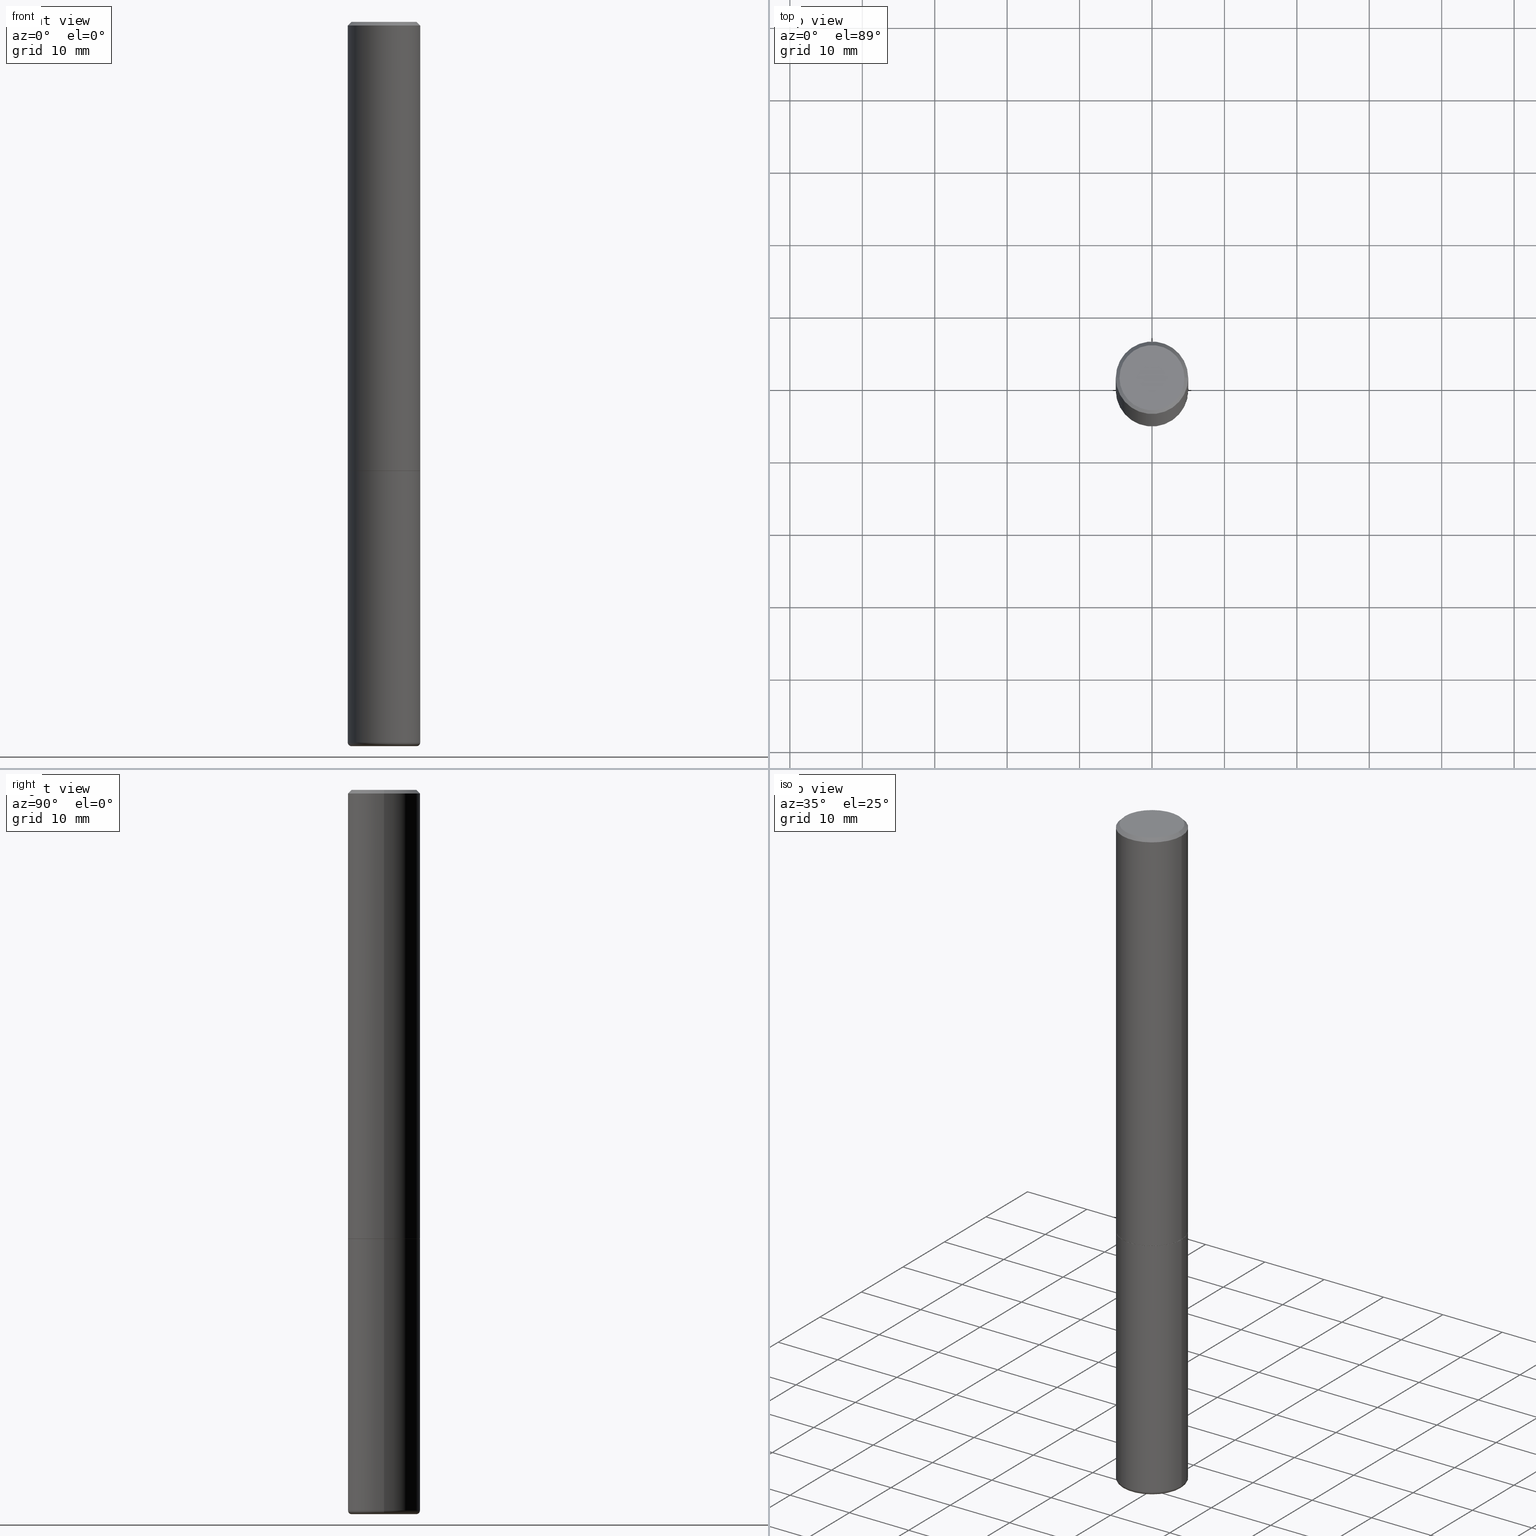
[diagram: canonical four-view strip — front | top / right | iso, engineering-drawing reading convention]
A machine part, canonical four-view strip (front | top / right | iso — engineering-drawing reading convention). The complete STEP part file that produces these views, byte-faithful:
ISO-10303-21;
HEADER;
FILE_DESCRIPTION (( 'STEP AP203' ),
    '1' );
FILE_NAME ('42678.STEP',
    '2024-03-04T01:03:24',
    ( '' ),
    ( '' ),
    'SwSTEP 2.0',
    'SolidWorks 2023',
    '' );
FILE_SCHEMA (( 'CONFIG_CONTROL_DESIGN' ));
ENDSEC;

DATA;
#1 = APPROVAL_ROLE ( '' ) ;
#2 = CARTESIAN_POINT ( 'NONE',  ( 0.1958499999999999963, -9.889970040407091715E-15, -2.440900000000000514 ) ) ;
#3 = AXIS2_PLACEMENT_3D ( 'NONE', #47, #51, #379 ) ;
#4 = CIRCLE ( 'NONE', #52, 0.1968500000000000250 ) ;
#5 = EDGE_CURVE ( 'NONE', #364, #43, #86, .T. ) ;
#6 = VERTEX_POINT ( 'NONE', #77 ) ;
#7 = DIRECTION ( 'NONE',  ( 1.000000000000000000, -6.982962677686265133E-15, 0.000000000000000000 ) ) ;
#8 = PRODUCT_RELATED_PRODUCT_CATEGORY ( 'detail', '', ( #269 ) ) ;
#9 = CARTESIAN_POINT ( 'NONE',  ( 9.627810689950881427E-29, -1.374596203102546184E-14, -3.936999999999999389 ) ) ;
#10 = ORIENTED_EDGE ( 'NONE', *, *, #107, .T. ) ;
#11 = DIRECTION ( 'NONE',  ( -2.445468806185136597E-29, 3.491481338843145583E-15, 1.000000000000000000 ) ) ;
#12 = EDGE_CURVE ( 'NONE', #364, #403, #382, .T. ) ;
#13 = VECTOR ( 'NONE', #414, 39.37007874015748143 ) ;
#14 = VERTEX_POINT ( 'NONE', #83 ) ;
#15 = EDGE_LOOP ( 'NONE', ( #164, #371 ) ) ;
#16 = EDGE_CURVE ( 'NONE', #394, #231, #138, .T. ) ;
#17 = CARTESIAN_POINT ( 'NONE',  ( -0.1968500000000001360, 1.398703375343758182E-15, -9.682923725166790684E-30 ) ) ;
#18 = PLANE ( 'NONE',  #53 ) ;
#19 = CIRCLE ( 'NONE', #356, 0.01969999999999962059 ) ;
#20 = DIRECTION ( 'NONE',  ( -2.445468806185136597E-29, 3.491481338843145583E-15, 1.000000000000000000 ) ) ;
#21 = LINE ( 'NONE', #369, #342 ) ;
#22 = DIRECTION ( 'NONE',  ( 1.000000000000000000, -6.982962677686266711E-15, 4.876176775795935793E-29 ) ) ;
#23 = CC_DESIGN_PERSON_AND_ORGANIZATION_ASSIGNMENT ( #273, #280, ( #269 ) ) ;
#24 = EDGE_CURVE ( 'NONE', #106, #316, #143, .T. ) ;
#25 = DIRECTION ( 'NONE',  ( -2.445468806185136597E-29, 3.491481338843145583E-15, 1.000000000000000000 ) ) ;
#26 = CLOSED_SHELL ( 'NONE', ( #195, #256, #381, #341, #295, #119 ) ) ;
#27 = EDGE_CURVE ( 'NONE', #394, #272, #345, .T. ) ;
#28 = CARTESIAN_POINT ( 'NONE',  ( 0.1968500000000000527, -1.420318657638189516E-15, -0.02000000000000004205 ) ) ;
#29 = ORIENTED_EDGE ( 'NONE', *, *, #262, .T. ) ;
#30 = APPROVAL_ROLE ( '' ) ;
#31 = CARTESIAN_POINT ( 'NONE',  ( 0.000000000000000000, 0.000000000000000000, 0.000000000000000000 ) ) ;
#32 = CIRCLE ( 'NONE', #405, 0.1968500000000000250 ) ;
#33 = DIRECTION ( 'NONE',  ( -2.445468806185136597E-29, 3.491481338843145583E-15, 1.000000000000000000 ) ) ;
#34 = ADVANCED_FACE ( 'NONE', ( #213 ), #417, .T. ) ;
#35 = CIRCLE ( 'NONE', #68, 0.1968500000000000527 ) ;
#36 = APPROVAL_PERSON_ORGANIZATION ( #249, #322, #1 ) ;
#37 = CARTESIAN_POINT ( 'NONE',  ( 0.1968500000000002470, -9.893461521745933144E-15, -2.439900000000000180 ) ) ;
#38 = ORIENTED_EDGE ( 'NONE', *, *, #49, .F. ) ;
#39 = CYLINDRICAL_SURFACE ( 'NONE', #252, 0.1968499999999999694 ) ;
#40 = DIRECTION ( 'NONE',  ( 2.438088387897960049E-29, -3.491481338843145188E-15, -1.000000000000000000 ) ) ;
#41 = CC_DESIGN_SECURITY_CLASSIFICATION ( #413, ( #383 ) ) ;
#42 = DATE_AND_TIME ( #298, #351 ) ;
#43 = VERTEX_POINT ( 'NONE', #48 ) ;
#44 = ORIENTED_EDGE ( 'NONE', *, *, #262, .F. ) ;
#45 = DIRECTION ( 'NONE',  ( -2.445468806185136597E-29, 3.491481338843145583E-15, 1.000000000000000000 ) ) ;
#46 = AXIS2_PLACEMENT_3D ( 'NONE', #84, #20, #50 ) ;
#47 = CARTESIAN_POINT ( 'NONE',  ( 5.969144809017301280E-29, -8.522356799982236121E-15, -2.440900000000000514 ) ) ;
#48 = CARTESIAN_POINT ( 'NONE',  ( -0.1968500000000002470, -2.895644097366365685E-15, -2.439900000000000180 ) ) ;
#49 = EDGE_CURVE ( 'NONE', #272, #96, #32, .T. ) ;
#50 = DIRECTION ( 'NONE',  ( 1.000000000000000000, -6.982962677686269866E-15, 0.000000000000000000 ) ) ;
#51 = DIRECTION ( 'NONE',  ( -2.445468806185136597E-29, 3.491481338843145583E-15, 1.000000000000000000 ) ) ;
#52 = AXIS2_PLACEMENT_3D ( 'NONE', #396, #98, #352 ) ;
#53 = AXIS2_PLACEMENT_3D ( 'NONE', #165, #40, #162 ) ;
#54 = FACE_OUTER_BOUND ( 'NONE', #227, .T. ) ;
#55 = CIRCLE ( 'NONE', #180, 0.1968500000000000527 ) ;
#56 = CARTESIAN_POINT ( 'NONE',  ( 0.000000000000000000, 0.000000000000000000, 0.000000000000000000 ) ) ;
#57 = AXIS2_PLACEMENT_3D ( 'NONE', #310, #118, #314 ) ;
#58 = DATE_AND_TIME ( #166, #287 ) ;
#59 = EDGE_CURVE ( 'NONE', #140, #132, #35, .T. ) ;
#60 = ORIENTED_EDGE ( 'NONE', *, *, #116, .T. ) ;
#61 = CYLINDRICAL_SURFACE ( 'NONE', #92, 0.1968500000000001360 ) ;
#62 = EDGE_LOOP ( 'NONE', ( #398, #230, #141, #182 ) ) ;
#63 = DIRECTION ( 'NONE',  ( 1.000000000000000000, -6.982962677686271444E-15, 4.883557194083114583E-29 ) ) ;
#64 = DIRECTION ( 'NONE',  ( -2.445468806185136597E-29, 3.491481338843145583E-15, 1.000000000000000000 ) ) ;
#65 = FACE_OUTER_BOUND ( 'NONE', #299, .T. ) ;
#66 = ORIENTED_EDGE ( 'NONE', *, *, #155, .F. ) ;
#67 = DIRECTION ( 'NONE',  ( 2.445468806185136597E-29, -3.491481338843145583E-15, -1.000000000000000000 ) ) ;
#68 = AXIS2_PLACEMENT_3D ( 'NONE', #340, #411, #259 ) ;
#69 = AXIS2_PLACEMENT_3D ( 'NONE', #233, #90, #220 ) ;
#70 = EDGE_CURVE ( 'NONE', #43, #279, #160, .T. ) ;
#71 = ORIENTED_EDGE ( 'NONE', *, *, #329, .T. ) ;
#72 = PERSON_AND_ORGANIZATION_ROLE ( 'creator' ) ;
#73 = CARTESIAN_POINT ( 'NONE',  ( 9.579634954469036932E-29, -1.367717984865025539E-14, -3.917300000000000448 ) ) ;
#74 = PLANE ( 'NONE',  #319 ) ;
#75 = ORIENTED_EDGE ( 'NONE', *, *, #70, .T. ) ;
#76 = CC_DESIGN_DATE_AND_TIME_ASSIGNMENT ( #58, #154, ( #413 ) ) ;
#77 = CARTESIAN_POINT ( 'NONE',  ( -0.1771500000000000019, -1.238285602396647324E-14, -3.936999999999999389 ) ) ;
#78 = CIRCLE ( 'NONE', #223, 0.1771500000000000019 ) ;
#79 = CARTESIAN_POINT ( 'NONE',  ( 0.1958499999999999963, -9.889970040407091715E-15, -2.440900000000000514 ) ) ;
#80 = ORIENTED_EDGE ( 'NONE', *, *, #281, .F. ) ;
#81 = LINE ( 'NONE', #225, #274 ) ;
#82 = DIRECTION ( 'NONE',  ( 1.000000000000000000, -6.982962677686272233E-15, 0.000000000000000000 ) ) ;
#83 = CARTESIAN_POINT ( 'NONE',  ( 0.1771500000000000019, -1.498299386937758423E-14, -3.936999999999999389 ) ) ;
#84 = CARTESIAN_POINT ( 'NONE',  ( 9.579634954469036932E-29, -1.367717984865025539E-14, -3.917300000000000448 ) ) ;
#85 = DIRECTION ( 'NONE',  ( 1.000000000000000000, -6.982962677686268288E-15, 0.000000000000000000 ) ) ;
#86 = LINE ( 'NONE', #347, #211 ) ;
#87 =( NAMED_UNIT ( * ) SI_UNIT ( $, .STERADIAN. ) SOLID_ANGLE_UNIT ( ) );
#88 = EDGE_CURVE ( 'NONE', #14, #6, #78, .T. ) ;
#89 = PLANE ( 'NONE',  #412 ) ;
#90 = DIRECTION ( 'NONE',  ( -2.445468806185136597E-29, 3.491481338843145583E-15, 1.000000000000000000 ) ) ;
#91 = COORDINATED_UNIVERSAL_TIME_OFFSET ( 5, 0, .BEHIND. ) ;
#92 = AXIS2_PLACEMENT_3D ( 'NONE', #365, #64, #22 ) ;
#93 = ADVANCED_FACE ( 'NONE', ( #311 ), #74, .F. ) ;
#94 = DIRECTION ( 'NONE',  ( -1.000000000000000000, 7.105427357600965571E-15, 0.000000000000000000 ) ) ;
#95 = APPROVAL_DATE_TIME ( #392, #322 ) ;
#96 = VERTEX_POINT ( 'NONE', #339 ) ;
#97 = APPLICATION_PROTOCOL_DEFINITION ( 'international standard', 'config_control_design', 1994, #400 ) ;
#98 = DIRECTION ( 'NONE',  ( -2.445468806185136597E-29, 3.491481338843145583E-15, 1.000000000000000000 ) ) ;
#99 = DESIGN_CONTEXT ( 'detailed design', #385, 'design' ) ;
#100 = ORIENTED_EDGE ( 'NONE', *, *, #107, .F. ) ;
#101 = PERSON_AND_ORGANIZATION ( #219, #224 ) ;
#102 = ORIENTED_EDGE ( 'NONE', *, *, #184, .F. ) ;
#103 = DIRECTION ( 'NONE',  ( 0.000000000000000000, 0.000000000000000000, 1.000000000000000000 ) ) ;
#104 = LINE ( 'NONE', #17, #139 ) ;
#105 = EDGE_CURVE ( 'NONE', #279, #132, #410, .T. ) ;
#106 = VERTEX_POINT ( 'NONE', #131 ) ;
#107 = EDGE_CURVE ( 'NONE', #231, #96, #185, .T. ) ;
#108 = ORIENTED_EDGE ( 'NONE', *, *, #391, .F. ) ;
#109 = CARTESIAN_POINT ( 'NONE',  ( 9.627810689950881427E-29, -1.374596203102546184E-14, -3.936999999999999389 ) ) ;
#110 = CARTESIAN_POINT ( 'NONE',  ( 9.579634954469036932E-29, -1.367717984865025539E-14, -3.917300000000000448 ) ) ;
#111 = CARTESIAN_POINT ( 'NONE',  ( 4.890937612370283668E-31, -6.982962677686305168E-17, -0.02000000000000004205 ) ) ;
#112 = AXIS2_PLACEMENT_3D ( 'NONE', #173, #45, #201 ) ;
#113 = AXIS2_PLACEMENT_3D ( 'NONE', #109, #362, #318 ) ;
#114 = ORIENTED_EDGE ( 'NONE', *, *, #70, .F. ) ;
#115 = CARTESIAN_POINT ( 'NONE',  ( -0.1958499999999999963, -7.125460397647855362E-15, -2.440900000000000514 ) ) ;
#116 = EDGE_CURVE ( 'NONE', #132, #140, #55, .T. ) ;
#117 = DIRECTION ( 'NONE',  ( 1.000000000000000000, -6.982962677686266711E-15, 4.870572768024644616E-29 ) ) ;
#118 = DIRECTION ( 'NONE',  ( -2.445468806185136597E-29, 3.491481338843145583E-15, 1.000000000000000000 ) ) ;
#119 = ADVANCED_FACE ( 'NONE', ( #338 ), #409, .T. ) ;
#120 = CC_DESIGN_APPROVAL ( #322, ( #401 ) ) ;
#121 = COORDINATED_UNIVERSAL_TIME_OFFSET ( 5, 0, .BEHIND. ) ;
#122 = FACE_OUTER_BOUND ( 'NONE', #406, .T. ) ;
#123 = EDGE_CURVE ( 'NONE', #106, #132, #81, .T. ) ;
#124 = DIRECTION ( 'NONE',  ( -6.982962677686266711E-15, -1.000000000000000000, 3.491481338843145583E-15 ) ) ;
#125 = AXIS2_PLACEMENT_3D ( 'NONE', #387, #291, #94 ) ;
#126 = CONICAL_SURFACE ( 'NONE', #320, 0.1958499999999999963, 0.7853981633973970977 ) ;
#127 = PERSON_AND_ORGANIZATION ( #219, #224 ) ;
#128 = PERSON_AND_ORGANIZATION_ROLE ( 'creator' ) ;
#129 = ORIENTED_EDGE ( 'NONE', *, *, #116, .F. ) ;
#130 = DIRECTION ( 'NONE',  ( 1.000000000000000000, -6.982962677686266711E-15, 4.876176775795935793E-29 ) ) ;
#131 = CARTESIAN_POINT ( 'NONE',  ( 0.1768499999999998129, -1.316798864272041352E-15, 2.091571120149290674E-16 ) ) ;
#132 = VERTEX_POINT ( 'NONE', #28 ) ;
#133 = ORIENTED_EDGE ( 'NONE', *, *, #221, .T. ) ;
#134 = ORIENTED_EDGE ( 'NONE', *, *, #12, .F. ) ;
#135 = CALENDAR_DATE ( 2024, 3, 3 ) ;
#136 = ORIENTED_EDGE ( 'NONE', *, *, #59, .F. ) ;
#137 = ADVANCED_FACE ( 'NONE', ( #386 ), #89, .F. ) ;
#138 = CIRCLE ( 'NONE', #46, 0.1968499999999999694 ) ;
#139 = VECTOR ( 'NONE', #344, 39.37007874015748143 ) ;
#140 = VERTEX_POINT ( 'NONE', #244 ) ;
#141 = ORIENTED_EDGE ( 'NONE', *, *, #312, .T. ) ;
#142 = DIRECTION ( 'NONE',  ( 2.438088387897960049E-29, -3.491481338843145188E-15, -1.000000000000000000 ) ) ;
#143 = CIRCLE ( 'NONE', #232, 0.1768499999999998129 ) ;
#144 = AXIS2_PLACEMENT_3D ( 'NONE', #56, #103, #157 ) ;
#145 = DIRECTION ( 'NONE',  ( -2.445468806185136597E-29, 3.491481338843145583E-15, 1.000000000000000000 ) ) ;
#146 = DIRECTION ( 'NONE',  ( 2.445468806185136597E-29, -3.491481338843145583E-15, -1.000000000000000000 ) ) ;
#147 = EDGE_LOOP ( 'NONE', ( #359, #242 ) ) ;
#148 = ADVANCED_FACE ( 'NONE', ( #361 ), #61, .T. ) ;
#149 = DIRECTION ( 'NONE',  ( -2.445468806185136597E-29, 3.491481338843145583E-15, 1.000000000000000000 ) ) ;
#150 = AXIS2_PLACEMENT_3D ( 'NONE', #111, #146, #415 ) ;
#151 = PERSON_AND_ORGANIZATION ( #219, #224 ) ;
#152 = MECHANICAL_CONTEXT ( 'NONE', #400, 'mechanical' ) ;
#153 = CONICAL_SURFACE ( 'NONE', #150, 0.1968500000000000527, 0.7853981633974477239 ) ;
#154 = DATE_TIME_ROLE ( 'classification_date' ) ;
#155 = EDGE_CURVE ( 'NONE', #403, #364, #282, .T. ) ;
#156 = EDGE_LOOP ( 'NONE', ( #366, #333, #108, #245 ) ) ;
#157 = DIRECTION ( 'NONE',  ( 1.000000000000000000, 0.000000000000000000, 0.000000000000000000 ) ) ;
#158 = DATE_AND_TIME ( #135, #325 ) ;
#159 = ORIENTED_EDGE ( 'NONE', *, *, #258, .F. ) ;
#160 = CIRCLE ( 'NONE', #286, 0.1968500000000002470 ) ;
#161 = LOCAL_TIME ( 20, 3, 24.00000000000000000, #121 ) ;
#162 = DIRECTION ( 'NONE',  ( -1.000000000000000000, 6.982962677686265922E-15, -4.876176775795935793E-29 ) ) ;
#163 = DIRECTION ( 'NONE',  ( -2.445468806185136597E-29, 3.491481338843145583E-15, 1.000000000000000000 ) ) ;
#164 = ORIENTED_EDGE ( 'NONE', *, *, #337, .T. ) ;
#165 = CARTESIAN_POINT ( 'NONE',  ( 5.969144809017300159E-29, -8.522356799982234543E-15, -2.440900000000000070 ) ) ;
#166 = CALENDAR_DATE ( 2024, 3, 3 ) ;
#167 = ORIENTED_EDGE ( 'NONE', *, *, #184, .T. ) ;
#168 = CARTESIAN_POINT ( 'NONE',  ( 5.969144809017300159E-29, -8.522356799982234543E-15, -2.440900000000000070 ) ) ;
#169 = DIRECTION ( 'NONE',  ( -1.000000000000000000, 6.982962677686265922E-15, -4.876176775795935793E-29 ) ) ;
#170 = VECTOR ( 'NONE', #313, 39.37007874015748143 ) ;
#171 = CC_DESIGN_APPROVAL ( #210, ( #383 ) ) ;
#172 = APPROVAL_DATE_TIME ( #158, #363 ) ;
#173 = CARTESIAN_POINT ( 'NONE',  ( 0.000000000000000000, 0.000000000000000000, 0.000000000000000000 ) ) ;
#174 = DIRECTION ( 'NONE',  ( -0.7071067811865471286, 2.468850131082252722E-15, -0.7071067811865479058 ) ) ;
#175 = UNCERTAINTY_MEASURE_WITH_UNIT (LENGTH_MEASURE( 1.000000000000000082E-05 ), #321, 'distance_accuracy_value', 'NONE');
#176 = CARTESIAN_POINT ( 'NONE',  ( 5.969144809017301280E-29, -8.522356799982236121E-15, -2.440900000000000514 ) ) ;
#177 = DIRECTION ( 'NONE',  ( -2.445468806185136597E-29, 3.491481338843145583E-15, 1.000000000000000000 ) ) ;
#178 = EDGE_CURVE ( 'NONE', #6, #394, #390, .T. ) ;
#179 = CARTESIAN_POINT ( 'NONE',  ( -5.114871930242576863E-45, 7.302681534864191472E-31, 2.091571120149201434E-16 ) ) ;
#180 = AXIS2_PLACEMENT_3D ( 'NONE', #360, #11, #209 ) ;
#181 = AXIS2_PLACEMENT_3D ( 'NONE', #216, #380, #85 ) ;
#182 = ORIENTED_EDGE ( 'NONE', *, *, #59, .T. ) ;
#183 = APPROVAL_STATUS ( 'not_yet_approved' ) ;
#184 = EDGE_CURVE ( 'NONE', #96, #272, #4, .T. ) ;
#185 = LINE ( 'NONE', #334, #240 ) ;
#186 = CC_DESIGN_APPROVAL ( #363, ( #413 ) ) ;
#187 = LENGTH_MEASURE_WITH_UNIT ( LENGTH_MEASURE( 0.02539999999999999897 ), #288 );
#188 = CARTESIAN_POINT ( 'NONE',  ( 0.1771500000000000019, -1.491421168700237936E-14, -3.917300000000000448 ) ) ;
#189 = CARTESIAN_POINT ( 'NONE',  ( 5.966699340211115678E-29, -8.518865318643391536E-15, -2.439900000000000180 ) ) ;
#190 = CARTESIAN_POINT ( 'NONE',  ( 0.1968499999999998029, -1.505177605175279542E-14, -3.917300000000000448 ) ) ;
#191 = ORIENTED_EDGE ( 'NONE', *, *, #105, .F. ) ;
#192 = COORDINATED_UNIVERSAL_TIME_OFFSET ( 5, 0, .BEHIND. ) ;
#193 = PRODUCT_DEFINITION_SHAPE ( 'NONE', 'NONE',  #401 ) ;
#194 = ORIENTED_EDGE ( 'NONE', *, *, #123, .T. ) ;
#195 = ADVANCED_FACE ( 'NONE', ( #122 ), #228, .T. ) ;
#196 = EDGE_LOOP ( 'NONE', ( #167, #208 ) ) ;
#197 = CC_DESIGN_PERSON_AND_ORGANIZATION_ASSIGNMENT ( #198, #393, ( #383 ) ) ;
#198 = PERSON_AND_ORGANIZATION ( #219, #224 ) ;
#199 = ORIENTED_EDGE ( 'NONE', *, *, #258, .T. ) ;
#200 = EDGE_LOOP ( 'NONE', ( #402, #194, #60, #309 ) ) ;
#201 = DIRECTION ( 'NONE',  ( 1.000000000000000000, -6.982962677686266711E-15, 4.876176775795935793E-29 ) ) ;
#202 = CARTESIAN_POINT ( 'NONE',  ( 0.1968500000000001360, -1.374596203102542594E-15, 9.598753983154306463E-30 ) ) ;
#203 = DIRECTION ( 'NONE',  ( 1.000000000000000000, -6.982962677686266711E-15, 4.870572768024644616E-29 ) ) ;
#204 = DIRECTION ( 'NONE',  ( -0.7071067811865112684, 7.493145998870223209E-15, 0.7071067811865837660 ) ) ;
#205 = APPLICATION_PROTOCOL_DEFINITION ( 'international standard', 'config_control_design', 1994, #385 ) ;
#206 = EDGE_LOOP ( 'NONE', ( #268, #229, #29, #114 ) ) ;
#207 = CARTESIAN_POINT ( 'NONE',  ( -0.1968499999999998029, -1.227847647330649996E-14, -3.917300000000000448 ) ) ;
#208 = ORIENTED_EDGE ( 'NONE', *, *, #49, .T. ) ;
#209 = DIRECTION ( 'NONE',  ( 1.000000000000000000, -6.982962677686266711E-15, 0.000000000000000000 ) ) ;
#210 = APPROVAL ( #289, 'UNSPECIFIED' ) ;
#211 = VECTOR ( 'NONE', #204, 39.37007874015748143 ) ;
#212 = AXIS2_PLACEMENT_3D ( 'NONE', #179, #33, #203 ) ;
#213 = FACE_OUTER_BOUND ( 'NONE', #304, .T. ) ;
#214 = DIRECTION ( 'NONE',  ( -2.445468806185136877E-29, 3.491481338843145188E-15, 1.000000000000000000 ) ) ;
#215 = FACE_OUTER_BOUND ( 'NONE', #200, .T. ) ;
#216 = CARTESIAN_POINT ( 'NONE',  ( 5.969144809017301280E-29, -8.522356799982236121E-15, -2.440900000000000514 ) ) ;
#217 = CARTESIAN_POINT ( 'NONE',  ( 1.234936949548814815E-15, 0.1768499999999998129, -5.128899187669496159E-16 ) ) ;
#218 = CC_DESIGN_PERSON_AND_ORGANIZATION_ASSIGNMENT ( #303, #226, ( #413 ) ) ;
#219 = PERSON ( 'UNSPECIFIED', 'UNSPECIFIED', 'UNSPECIFIED', ('UNSPECIFIED'), ('UNSPECIFIED'), ('UNSPECIFIED') ) ;
#220 = DIRECTION ( 'NONE',  ( 1.000000000000000000, -6.982962677686265133E-15, 0.000000000000000000 ) ) ;
#221 = EDGE_CURVE ( 'NONE', #14, #231, #19, .T. ) ;
#222 = DATE_AND_TIME ( #247, #308 ) ;
#223 = AXIS2_PLACEMENT_3D ( 'NONE', #9, #163, #82 ) ;
#224 = ORGANIZATION ( 'UNSPECIFIED', 'UNSPECIFIED', '' ) ;
#225 = CARTESIAN_POINT ( 'NONE',  ( 0.1968500000000000527, -1.420318657638189516E-15, -0.02000000000000004205 ) ) ;
#226 = PERSON_AND_ORGANIZATION_ROLE ( 'classification_officer' ) ;
#227 = EDGE_LOOP ( 'NONE', ( #236, #71, #133, #336 ) ) ;
#228 = CYLINDRICAL_SURFACE ( 'NONE', #251, 0.1968499999999999694 ) ;
#229 = ORIENTED_EDGE ( 'NONE', *, *, #12, .T. ) ;
#230 = ORIENTED_EDGE ( 'NONE', *, *, #337, .F. ) ;
#231 = VERTEX_POINT ( 'NONE', #190 ) ;
#232 = AXIS2_PLACEMENT_3D ( 'NONE', #284, #177, #117 ) ;
#233 = CARTESIAN_POINT ( 'NONE',  ( 5.966699340211115678E-29, -8.518865318643391536E-15, -2.439900000000000180 ) ) ;
#234 = DIRECTION ( 'NONE',  ( 1.000000000000000000, -6.982962677686268288E-15, 0.000000000000000000 ) ) ;
#235 = DIRECTION ( 'NONE',  ( -1.000000000000000000, 6.982962677686265922E-15, -4.876176775795935793E-29 ) ) ;
#236 = ORIENTED_EDGE ( 'NONE', *, *, #178, .F. ) ;
#237 = CC_DESIGN_DATE_AND_TIME_ASSIGNMENT ( #222, #290, ( #401 ) ) ;
#238 = DIRECTION ( 'NONE',  ( 0.7071067811865471286, -7.319954787623254468E-15, -0.7071067811865479058 ) ) ;
#239 = ORIENTED_EDGE ( 'NONE', *, *, #105, .T. ) ;
#240 = VECTOR ( 'NONE', #214, 39.37007874015748143 ) ;
#241 = CIRCLE ( 'NONE', #69, 0.1968500000000002470 ) ;
#242 = ORIENTED_EDGE ( 'NONE', *, *, #329, .F. ) ;
#243 = CC_DESIGN_PERSON_AND_ORGANIZATION_ASSIGNMENT ( #348, #72, ( #401 ) ) ;
#244 = CARTESIAN_POINT ( 'NONE',  ( -0.1968500000000000527, 1.304766576325678902E-15, -0.02000000000000004205 ) ) ;
#245 = ORIENTED_EDGE ( 'NONE', *, *, #221, .F. ) ;
#246 = FACE_OUTER_BOUND ( 'NONE', #206, .T. ) ;
#247 = CALENDAR_DATE ( 2024, 3, 3 ) ;
#248 = ORIENTED_EDGE ( 'NONE', *, *, #391, .T. ) ;
#249 = PERSON_AND_ORGANIZATION ( #219, #224 ) ;
#250 =( NAMED_UNIT ( * ) PLANE_ANGLE_UNIT ( ) SI_UNIT ( $, .RADIAN. ) );
#251 = AXIS2_PLACEMENT_3D ( 'NONE', #31, #294, #130 ) ;
#252 = AXIS2_PLACEMENT_3D ( 'NONE', #302, #25, #283 ) ;
#253 = AXIS2_PLACEMENT_3D ( 'NONE', #110, #346, #63 ) ;
#254 = DIRECTION ( 'NONE',  ( 2.438088387897960049E-29, -3.491481338843145188E-15, -1.000000000000000000 ) ) ;
#255 = DIRECTION ( 'NONE',  ( 1.000000000000000000, -6.982962677686269866E-15, 0.000000000000000000 ) ) ;
#256 = ADVANCED_FACE ( 'NONE', ( #326 ), #261, .T. ) ;
#257 = MANIFOLD_SOLID_BREP ( 'Body-Move/Copy2[2]', #300 ) ;
#258 = EDGE_CURVE ( 'NONE', #43, #140, #104, .T. ) ;
#259 = DIRECTION ( 'NONE',  ( 1.000000000000000000, -6.982962677686266711E-15, 0.000000000000000000 ) ) ;
#260 = CARTESIAN_POINT ( 'NONE',  ( -0.1968500000000000250, -9.701064948972487965E-15, -2.440900000000000070 ) ) ;
#261 = TOROIDAL_SURFACE ( 'NONE', #253, 0.1771500000000000019, 0.01969999999999960325 ) ;
#262 = EDGE_CURVE ( 'NONE', #403, #279, #373, .T. ) ;
#263 = SECURITY_CLASSIFICATION_LEVEL ( 'unclassified' ) ;
#264 = ORIENTED_EDGE ( 'NONE', *, *, #27, .F. ) ;
#265 = APPROVAL_DATE_TIME ( #42, #210 ) ;
#266 = ORIENTED_EDGE ( 'NONE', *, *, #155, .T. ) ;
#267 = CIRCLE ( 'NONE', #212, 0.1768499999999998129 ) ;
#268 = ORIENTED_EDGE ( 'NONE', *, *, #5, .F. ) ;
#269 = PRODUCT ( '42678', '42678', '', ( #152 ) ) ;
#270 = FACE_OUTER_BOUND ( 'NONE', #297, .T. ) ;
#271 = EDGE_LOOP ( 'NONE', ( #66, #134 ) ) ;
#272 = VERTEX_POINT ( 'NONE', #260 ) ;
#273 = PERSON_AND_ORGANIZATION ( #219, #224 ) ;
#274 = VECTOR ( 'NONE', #238, 39.37007874015748143 ) ;
#275 = AXIS2_PLACEMENT_3D ( 'NONE', #324, #67, #328 ) ;
#276 = DIRECTION ( 'NONE',  ( -2.438088387897960049E-29, 3.491481338843145188E-15, 1.000000000000000000 ) ) ;
#277 = DIRECTION ( 'NONE',  ( 1.000000000000000000, -6.982962677686267499E-15, 0.000000000000000000 ) ) ;
#278 = CARTESIAN_POINT ( 'NONE',  ( -0.1768499999999998129, 1.269851762937247450E-15, 2.091571120149113920E-16 ) ) ;
#279 = VERTEX_POINT ( 'NONE', #37 ) ;
#280 = PERSON_AND_ORGANIZATION_ROLE ( 'design_owner' ) ;
#281 = EDGE_CURVE ( 'NONE', #279, #43, #241, .T. ) ;
#282 = CIRCLE ( 'NONE', #330, 0.1958499999999999963 ) ;
#283 = DIRECTION ( 'NONE',  ( 1.000000000000000000, -6.982962677686266711E-15, 4.876176775795935793E-29 ) ) ;
#284 = CARTESIAN_POINT ( 'NONE',  ( -5.114871930242576863E-45, 7.302681534864191472E-31, 2.091571120149201434E-16 ) ) ;
#285 = APPROVAL_STATUS ( 'not_yet_approved' ) ;
#286 = AXIS2_PLACEMENT_3D ( 'NONE', #189, #149, #296 ) ;
#287 = LOCAL_TIME ( 20, 3, 24.00000000000000000, #358 ) ;
#288 =( LENGTH_UNIT ( ) NAMED_UNIT ( * ) SI_UNIT ( $, .METRE. ) );
#289 = APPROVAL_STATUS ( 'not_yet_approved' ) ;
#290 = DATE_TIME_ROLE ( 'creation_date' ) ;
#291 = DIRECTION ( 'NONE',  ( 7.105427357601001859E-15, 1.000000000000000000, -3.491481338843145583E-15 ) ) ;
#292 = AXIS2_PLACEMENT_3D ( 'NONE', #73, #377, #255 ) ;
#293 = CC_DESIGN_PERSON_AND_ORGANIZATION_ASSIGNMENT ( #101, #128, ( #383 ) ) ;
#294 = DIRECTION ( 'NONE',  ( -2.445468806185136597E-29, 3.491481338843145583E-15, 1.000000000000000000 ) ) ;
#295 = ADVANCED_FACE ( 'NONE', ( #54 ), #315, .T. ) ;
#296 = DIRECTION ( 'NONE',  ( 1.000000000000000000, -6.982962677686265133E-15, 0.000000000000000000 ) ) ;
#297 = EDGE_LOOP ( 'NONE', ( #266, #331, #80, #44 ) ) ;
#298 = CALENDAR_DATE ( 2024, 3, 3 ) ;
#299 = EDGE_LOOP ( 'NONE', ( #264, #327, #10, #38 ) ) ;
#300 = CLOSED_SHELL ( 'NONE', ( #389, #34, #305, #367, #148, #418, #93, #137 ) ) ;
#301 = ORIENTED_EDGE ( 'NONE', *, *, #27, .T. ) ;
#302 = CARTESIAN_POINT ( 'NONE',  ( 0.000000000000000000, 0.000000000000000000, 0.000000000000000000 ) ) ;
#303 = PERSON_AND_ORGANIZATION ( #219, #224 ) ;
#304 = EDGE_LOOP ( 'NONE', ( #374, #199, #129, #191 ) ) ;
#305 = ADVANCED_FACE ( 'NONE', ( #215 ), #153, .T. ) ;
#306 = EDGE_LOOP ( 'NONE', ( #159, #75, #239, #136 ) ) ;
#307 = DIRECTION ( 'NONE',  ( -2.445468806185136597E-29, 3.491481338843145583E-15, 1.000000000000000000 ) ) ;
#308 = LOCAL_TIME ( 20, 3, 24.00000000000000000, #91 ) ;
#309 = ORIENTED_EDGE ( 'NONE', *, *, #312, .F. ) ;
#310 = CARTESIAN_POINT ( 'NONE',  ( 9.579634954469036932E-29, -1.367717984865025539E-14, -3.917300000000000448 ) ) ;
#311 = FACE_OUTER_BOUND ( 'NONE', #271, .T. ) ;
#312 = EDGE_CURVE ( 'NONE', #316, #140, #21, .T. ) ;
#313 = DIRECTION ( 'NONE',  ( -2.445468806185136877E-29, 3.491481338843145188E-15, 1.000000000000000000 ) ) ;
#314 = DIRECTION ( 'NONE',  ( 1.000000000000000000, -6.982962677686271444E-15, 4.883557194083114583E-29 ) ) ;
#315 = TOROIDAL_SURFACE ( 'NONE', #57, 0.1771500000000000019, 0.01969999999999960325 ) ;
#316 = VERTEX_POINT ( 'NONE', #278 ) ;
#317 = COORDINATED_UNIVERSAL_TIME_OFFSET ( 5, 0, .BEHIND. ) ;
#318 = DIRECTION ( 'NONE',  ( 1.000000000000000000, -6.982962677686272233E-15, 0.000000000000000000 ) ) ;
#319 = AXIS2_PLACEMENT_3D ( 'NONE', #335, #276, #408 ) ;
#320 = AXIS2_PLACEMENT_3D ( 'NONE', #372, #404, #234 ) ;
#321 =( CONVERSION_BASED_UNIT ( 'INCH', #187 ) LENGTH_UNIT ( ) NAMED_UNIT ( #416 ) );
#322 = APPROVAL ( #183, 'UNSPECIFIED' ) ;
#323 = FACE_OUTER_BOUND ( 'NONE', #62, .T. ) ;
#324 = CARTESIAN_POINT ( 'NONE',  ( 4.890937612370283668E-31, -6.982962677686305168E-17, -0.02000000000000004205 ) ) ;
#325 = LOCAL_TIME ( 20, 3, 24.00000000000000000, #192 ) ;
#326 = FACE_OUTER_BOUND ( 'NONE', #156, .T. ) ;
#327 = ORIENTED_EDGE ( 'NONE', *, *, #16, .T. ) ;
#328 = DIRECTION ( 'NONE',  ( -1.000000000000000000, 6.982962677686266711E-15, 0.000000000000000000 ) ) ;
#329 = EDGE_CURVE ( 'NONE', #6, #14, #407, .T. ) ;
#330 = AXIS2_PLACEMENT_3D ( 'NONE', #176, #145, #378 ) ;
#331 = ORIENTED_EDGE ( 'NONE', *, *, #5, .T. ) ;
#332 = CONICAL_SURFACE ( 'NONE', #275, 0.1968500000000000527, 0.7853981633974477239 ) ;
#333 = ORIENTED_EDGE ( 'NONE', *, *, #178, .T. ) ;
#334 = CARTESIAN_POINT ( 'NONE',  ( 0.1968499999999999694, -1.374596203102541411E-15, 9.598753983154298056E-30 ) ) ;
#335 = CARTESIAN_POINT ( 'NONE',  ( 5.969144809017300159E-29, -8.522356799982234543E-15, -2.440900000000000070 ) ) ;
#336 = ORIENTED_EDGE ( 'NONE', *, *, #16, .F. ) ;
#337 = EDGE_CURVE ( 'NONE', #316, #106, #267, .T. ) ;
#338 = FACE_OUTER_BOUND ( 'NONE', #147, .T. ) ;
#339 = CARTESIAN_POINT ( 'NONE',  ( 0.1968500000000000250, -9.896953003084776152E-15, -2.440900000000000070 ) ) ;
#340 = CARTESIAN_POINT ( 'NONE',  ( 4.890937612370283668E-31, -6.982962677686305168E-17, -0.02000000000000004205 ) ) ;
#341 = ADVANCED_FACE ( 'NONE', ( #65 ), #39, .T. ) ;
#342 = VECTOR ( 'NONE', #174, 39.37007874015748143 ) ;
#343 = DIRECTION ( 'NONE',  ( -2.445468806185136877E-29, 3.491481338843145188E-15, 1.000000000000000000 ) ) ;
#344 = DIRECTION ( 'NONE',  ( -2.445468806185136877E-29, 3.491481338843145188E-15, 1.000000000000000000 ) ) ;
#345 = LINE ( 'NONE', #349, #170 ) ;
#346 = DIRECTION ( 'NONE',  ( -2.445468806185136597E-29, 3.491481338843145583E-15, 1.000000000000000000 ) ) ;
#347 = CARTESIAN_POINT ( 'NONE',  ( -0.1958499999999999963, -7.130758851996079342E-15, -2.440900000000000514 ) ) ;
#348 = PERSON_AND_ORGANIZATION ( #219, #224 ) ;
#349 = CARTESIAN_POINT ( 'NONE',  ( -0.1968499999999999694, 1.398703375343756999E-15, -9.682923725166782276E-30 ) ) ;
#350 = CARTESIAN_POINT ( 'NONE',  ( 1.810692529236509312E-28, -1.603387319135866675E-15, -3.937000000000000277 ) ) ;
#351 = LOCAL_TIME ( 20, 3, 24.00000000000000000, #317 ) ;
#352 = DIRECTION ( 'NONE',  ( 1.000000000000000000, -6.982962677686267499E-15, 0.000000000000000000 ) ) ;
#353 = AXIS2_PLACEMENT_3D ( 'NONE', #350, #142, #169 ) ;
#354 =( GEOMETRIC_REPRESENTATION_CONTEXT ( 3 ) GLOBAL_UNCERTAINTY_ASSIGNED_CONTEXT ( ( #175 ) ) GLOBAL_UNIT_ASSIGNED_CONTEXT ( ( #321, #250, #87 ) ) REPRESENTATION_CONTEXT ( 'NONE', 'WORKASPACE' ) );
#355 = SHAPE_DEFINITION_REPRESENTATION ( #193, #399 ) ;
#356 = AXIS2_PLACEMENT_3D ( 'NONE', #188, #124, #7 ) ;
#357 = APPROVAL_PERSON_ORGANIZATION ( #151, #210, #388 ) ;
#358 = COORDINATED_UNIVERSAL_TIME_OFFSET ( 5, 0, .BEHIND. ) ;
#359 = ORIENTED_EDGE ( 'NONE', *, *, #88, .F. ) ;
#360 = CARTESIAN_POINT ( 'NONE',  ( 4.890937612370283668E-31, -6.982962677686305168E-17, -0.02000000000000004205 ) ) ;
#361 = FACE_OUTER_BOUND ( 'NONE', #306, .T. ) ;
#362 = DIRECTION ( 'NONE',  ( -2.445468806185136597E-29, 3.491481338843145583E-15, 1.000000000000000000 ) ) ;
#363 = APPROVAL ( #285, 'UNSPECIFIED' ) ;
#364 = VERTEX_POINT ( 'NONE', #115 ) ;
#365 = CARTESIAN_POINT ( 'NONE',  ( 0.000000000000000000, 0.000000000000000000, 0.000000000000000000 ) ) ;
#366 = ORIENTED_EDGE ( 'NONE', *, *, #88, .T. ) ;
#367 = ADVANCED_FACE ( 'NONE', ( #323 ), #332, .T. ) ;
#368 = CIRCLE ( 'NONE', #292, 0.1968499999999999694 ) ;
#369 = CARTESIAN_POINT ( 'NONE',  ( -0.1968500000000000527, 1.304766576325678902E-15, -0.02000000000000004205 ) ) ;
#370 = FACE_OUTER_BOUND ( 'NONE', #196, .T. ) ;
#371 = ORIENTED_EDGE ( 'NONE', *, *, #24, .T. ) ;
#372 = CARTESIAN_POINT ( 'NONE',  ( 5.969144809017301280E-29, -8.522356799982236121E-15, -2.440900000000000514 ) ) ;
#373 = LINE ( 'NONE', #79, #13 ) ;
#374 = ORIENTED_EDGE ( 'NONE', *, *, #281, .T. ) ;
#375 = VECTOR ( 'NONE', #343, 39.37007874015748143 ) ;
#376 = APPROVAL_PERSON_ORGANIZATION ( #127, #363, #30 ) ;
#377 = DIRECTION ( 'NONE',  ( -2.445468806185136597E-29, 3.491481338843145583E-15, 1.000000000000000000 ) ) ;
#378 = DIRECTION ( 'NONE',  ( 1.000000000000000000, -6.982962677686268288E-15, 0.000000000000000000 ) ) ;
#379 = DIRECTION ( 'NONE',  ( 1.000000000000000000, -6.982962677686268288E-15, 0.000000000000000000 ) ) ;
#380 = DIRECTION ( 'NONE',  ( -2.445468806185136597E-29, 3.491481338843145583E-15, 1.000000000000000000 ) ) ;
#381 = ADVANCED_FACE ( 'NONE', ( #370 ), #18, .F. ) ;
#382 = CIRCLE ( 'NONE', #3, 0.1958499999999999963 ) ;
#383 = PRODUCT_DEFINITION_FORMATION_WITH_SPECIFIED_SOURCE ( 'ANY', '', #269, .NOT_KNOWN. ) ;
#384 = CALENDAR_DATE ( 2024, 3, 3 ) ;
#385 = APPLICATION_CONTEXT ( 'configuration controlled 3d designs of mechanical parts and assemblies' ) ;
#386 = FACE_OUTER_BOUND ( 'NONE', #15, .T. ) ;
#387 = CARTESIAN_POINT ( 'NONE',  ( -0.1771500000000000019, -1.241845339225123848E-14, -3.917300000000000448 ) ) ;
#388 = APPROVAL_ROLE ( '' ) ;
#389 = ADVANCED_FACE ( 'NONE', ( #270 ), #126, .T. ) ;
#390 = CIRCLE ( 'NONE', #125, 0.01969999999999962059 ) ;
#391 = EDGE_CURVE ( 'NONE', #231, #394, #368, .T. ) ;
#392 = DATE_AND_TIME ( #384, #161 ) ;
#393 = PERSON_AND_ORGANIZATION_ROLE ( 'design_supplier' ) ;
#394 = VERTEX_POINT ( 'NONE', #207 ) ;
#395 = MANIFOLD_SOLID_BREP ( 'Body-Move/Copy2[1]', #26 ) ;
#396 = CARTESIAN_POINT ( 'NONE',  ( 5.969144809017300159E-29, -8.522356799982234543E-15, -2.440900000000000070 ) ) ;
#397 = CONICAL_SURFACE ( 'NONE', #181, 0.1958499999999999963, 0.7853981633973970977 ) ;
#398 = ORIENTED_EDGE ( 'NONE', *, *, #123, .F. ) ;
#399 = ADVANCED_BREP_SHAPE_REPRESENTATION ( '42678', ( #395, #257, #144 ), #354 ) ;
#400 = APPLICATION_CONTEXT ( 'configuration controlled 3d designs of mechanical parts and assemblies' ) ;
#401 = PRODUCT_DEFINITION ( 'UNKNOWN', '', #383, #99 ) ;
#402 = ORIENTED_EDGE ( 'NONE', *, *, #24, .F. ) ;
#403 = VERTEX_POINT ( 'NONE', #2 ) ;
#404 = DIRECTION ( 'NONE',  ( -2.445468806185136597E-29, 3.491481338843145583E-15, 1.000000000000000000 ) ) ;
#405 = AXIS2_PLACEMENT_3D ( 'NONE', #168, #307, #277 ) ;
#406 = EDGE_LOOP ( 'NONE', ( #248, #301, #102, #100 ) ) ;
#407 = CIRCLE ( 'NONE', #113, 0.1771500000000000019 ) ;
#408 = DIRECTION ( 'NONE',  ( 1.000000000000000000, -6.982962677686265922E-15, 4.876176775795935793E-29 ) ) ;
#409 = PLANE ( 'NONE',  #353 ) ;
#410 = LINE ( 'NONE', #202, #375 ) ;
#411 = DIRECTION ( 'NONE',  ( -2.445468806185136597E-29, 3.491481338843145583E-15, 1.000000000000000000 ) ) ;
#412 = AXIS2_PLACEMENT_3D ( 'NONE', #217, #254, #235 ) ;
#413 = SECURITY_CLASSIFICATION ( '', '', #263 ) ;
#414 = DIRECTION ( 'NONE',  ( 0.7071067811865112684, -2.468850131081876830E-15, 0.7071067811865837660 ) ) ;
#415 = DIRECTION ( 'NONE',  ( -1.000000000000000000, 6.982962677686266711E-15, 0.000000000000000000 ) ) ;
#416 = DIMENSIONAL_EXPONENTS ( 1.000000000000000000, 0.000000000000000000, 0.000000000000000000, 0.000000000000000000, 0.000000000000000000, 0.000000000000000000, 0.000000000000000000 ) ;
#417 = CYLINDRICAL_SURFACE ( 'NONE', #112, 0.1968500000000001360 ) ;
#418 = ADVANCED_FACE ( 'NONE', ( #246 ), #397, .T. ) ;
ENDSEC;
END-ISO-10303-21;
